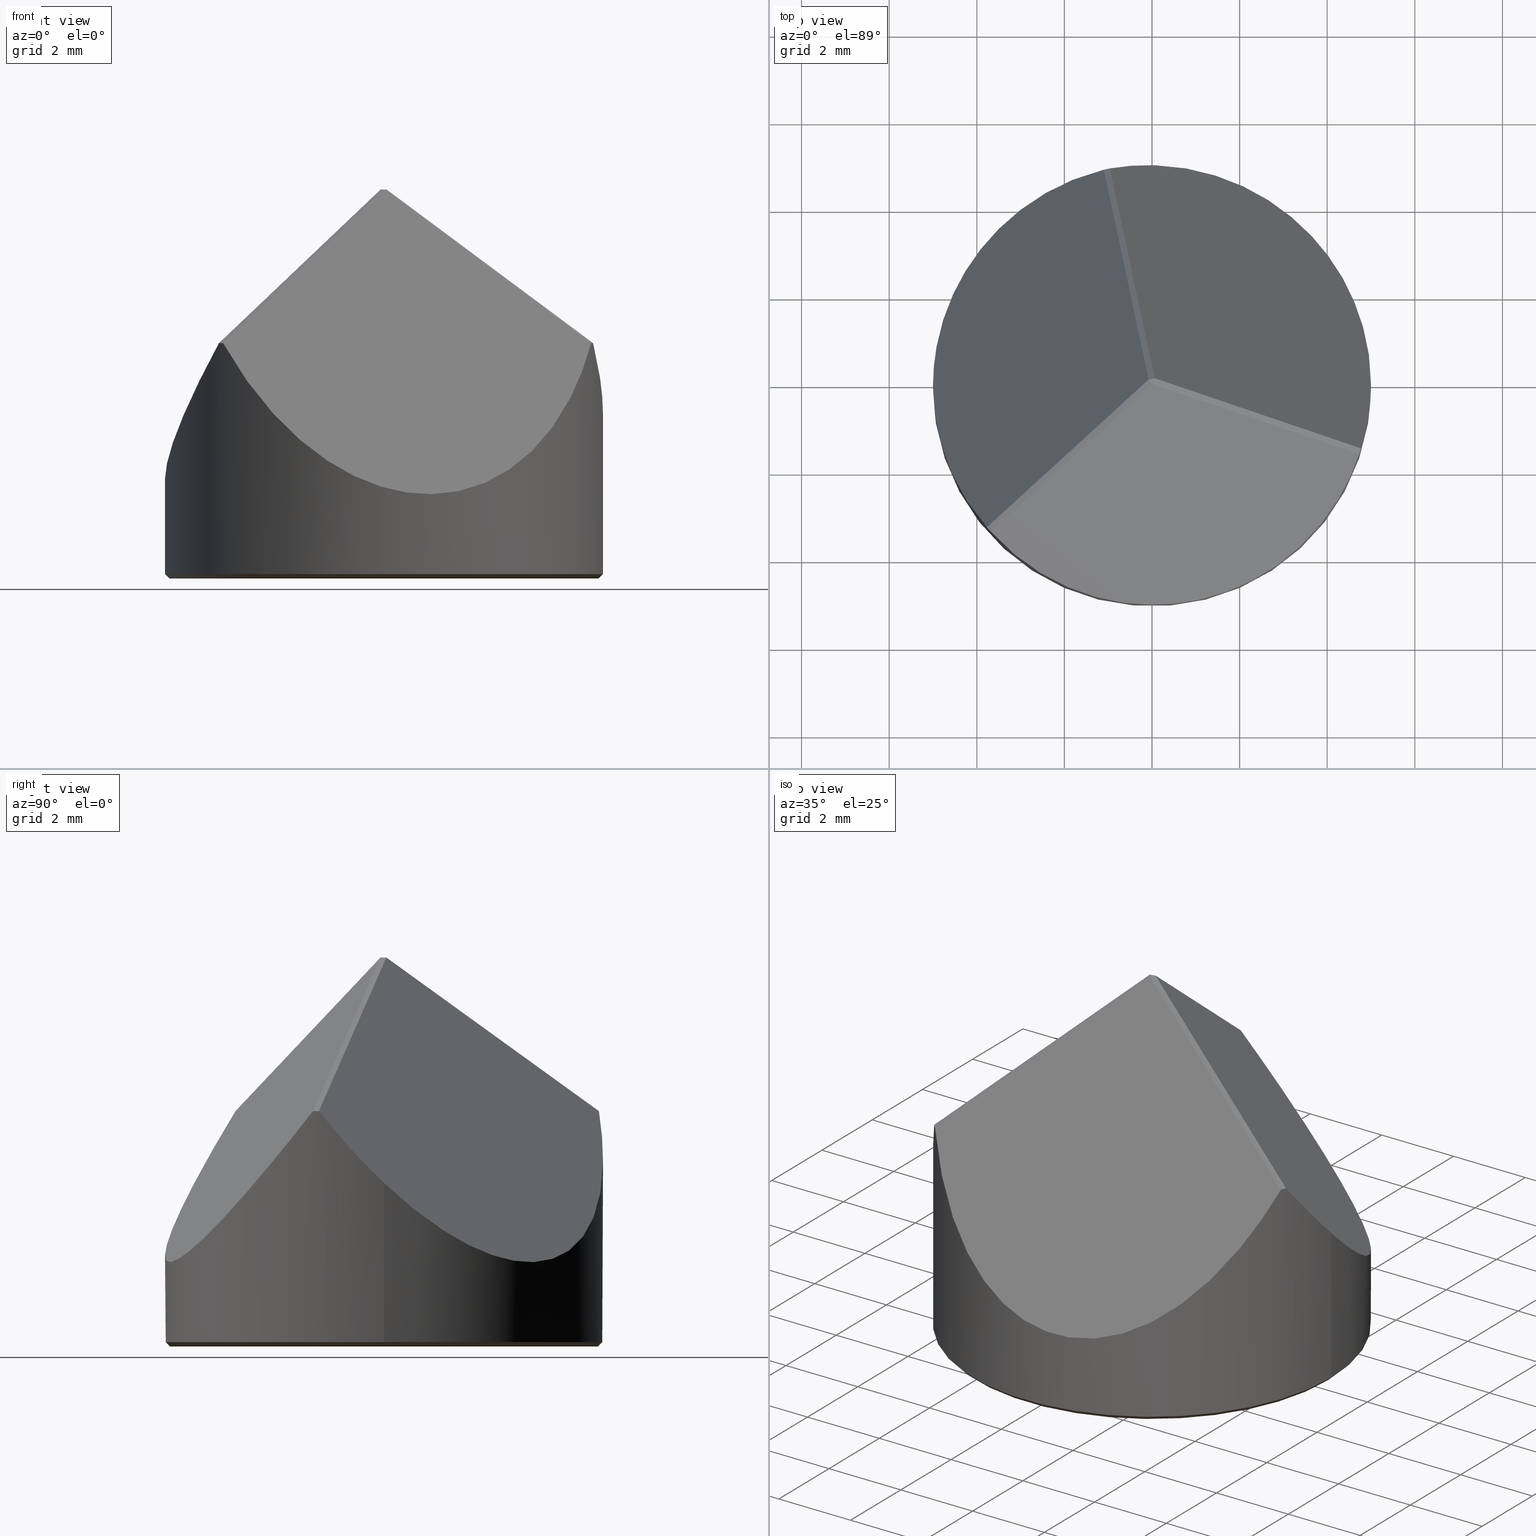
[diagram: canonical four-view strip — front | top / right | iso, engineering-drawing reading convention]
A machine part, canonical four-view strip (front | top / right | iso — engineering-drawing reading convention). The complete STEP part file that produces these views, byte-faithful:
ISO-10303-21;
HEADER;
FILE_DESCRIPTION (( 'STEP AP214' ),
    '1' );
FILE_NAME ('GP16-010-2.STEP',
    '2024-08-13T02:22:45',
    ( 'Windows User' ),
    ( 'P R C' ),
    'SwSTEP 2.0',
    'SolidWorks 2022',
    '' );
FILE_SCHEMA (( 'AUTOMOTIVE_DESIGN' ));
ENDSEC;

DATA;
#1 = DIRECTION ( 'NONE',  ( 0.1683570817218958959, -0.7989509119468811704, 0.5773502691896261751 ) ) ;
#2 = DIRECTION ( 'NONE',  ( 0.000000000000000000, 0.000000000000000000, -1.000000000000000000 ) ) ;
#3 = CARTESIAN_POINT ( 'NONE',  ( -5.000000000000000000, 0.000000000000000000, 1.814394517940242313 ) ) ;
#4 = ADVANCED_FACE ( 'NONE', ( #306 ), #161, .T. ) ;
#5 = DIRECTION ( 'NONE',  ( 0.000000000000000000, 0.000000000000000000, -1.000000000000000000 ) ) ;
#6 = CARTESIAN_POINT ( 'NONE',  ( -0.07760903269836616492, 0.02536739462952585650, 8.420063852094820334 ) ) ;
#7 = PLANE ( 'NONE',  #162 ) ;
#8 = DIRECTION ( 'NONE',  ( 0.3106858647308138321, 0.9505126477098904125, -1.227288938537843456E-14 ) ) ;
#9 = SURFACE_SIDE_STYLE ('',( #64 ) ) ;
#10 = DIRECTION ( 'NONE',  ( -0.9785110319005724255, -0.2061944724013640151, 1.227288938537842194E-14 ) ) ;
#11 = SHAPE_DEFINITION_REPRESENTATION ( #19, #221 ) ;
#12 = LINE ( 'NONE', #153, #134 ) ;
#13 = CARTESIAN_POINT ( 'NONE',  ( 2.994905055917830072, 2.687120959792284935, 2.845177968644243105 ) ) ;
#14 = ADVANCED_FACE ( 'NONE', ( #278 ), #67, .T. ) ;
#15 = DIRECTION ( 'NONE',  ( -1.000000000000000000, 0.000000000000000000, 0.000000000000000000 ) ) ;
#16 = CARTESIAN_POINT ( 'NONE',  ( -5.000000000000000000, -1.221581211786098908, 2.351128184227231799 ) ) ;
#17 = VERTEX_POINT ( 'NONE', #189 ) ;
#18 = EDGE_CURVE ( 'NONE', #225, #44, #185, .T. ) ;
#19 = PRODUCT_DEFINITION_SHAPE ( 'NONE', 'NONE',  #216 ) ;
#20 = ORIENTED_EDGE ( 'NONE', *, *, #18, .F. ) ;
#21 = VECTOR ( 'NONE', #328, 1000.000000000000114 ) ;
#22 =( GEOMETRIC_REPRESENTATION_CONTEXT ( 3 ) GLOBAL_UNCERTAINTY_ASSIGNED_CONTEXT ( ( #51 ) ) GLOBAL_UNIT_ASSIGNED_CONTEXT ( ( #154, #271, #251 ) ) REPRESENTATION_CONTEXT ( 'NONE', 'WORKASPACE' ) );
#23 = UNCERTAINTY_MEASURE_WITH_UNIT (LENGTH_MEASURE( 1.000000000000000082E-05 ), #112, 'distance_accuracy_value', 'NONE');
#24 = LINE ( 'NONE', #364, #157 ) ;
#25 = EDGE_CURVE ( 'NONE', #79, #358, #42, .T. ) ;
#26 = CARTESIAN_POINT ( 'NONE',  ( -2.917296023219464463, -2.712488354421814574, 5.632620910369529277 ) ) ;
#27 = ADVANCED_FACE ( 'NONE', ( #30 ), #91, .T. ) ;
#28 = VERTEX_POINT ( 'NONE', #86 ) ;
#29 = AXIS2_PLACEMENT_3D ( 'NONE', #182, #59, #319 ) ;
#30 = FACE_OUTER_BOUND ( 'NONE', #110, .T. ) ;
#31 = ORIENTED_EDGE ( 'NONE', *, *, #245, .T. ) ;
#32 = CARTESIAN_POINT ( 'NONE',  ( 4.999999999999998224, 3.399973796034752027, 0.06131317339008388045 ) ) ;
#33 = AXIS2_PLACEMENT_3D ( 'NONE', #13, #45, #330 ) ;
#34 = LINE ( 'NONE', #117, #122 ) ;
#35 = DIRECTION ( 'NONE',  ( 0.000000000000000000, 0.000000000000000000, 1.000000000000000000 ) ) ;
#36 =( NAMED_UNIT ( * ) PLANE_ANGLE_UNIT ( ) SI_UNIT ( $, .RADIAN. ) );
#37 = CARTESIAN_POINT ( 'NONE',  ( 5.000000000000000000, 6.123233995736766282E-16, 3.272409614722002758 ) ) ;
#38 = FILL_AREA_STYLE_COLOUR ( '', #100 ) ;
#39 = CIRCLE ( 'NONE', #272, 4.899999999999999467 ) ;
#40 = DIRECTION ( 'NONE',  ( -0.7760903269836912921, 0.2536739462952661839, 0.5773502691896258421 ) ) ;
#41 = CARTESIAN_POINT ( 'NONE',  ( -4.899999999999999467, 6.062001655779397525E-16, -0.4600000000000000755 ) ) ;
#42 = LINE ( 'NONE', #46, #224 ) ;
#43 = FILL_AREA_STYLE_COLOUR ( '', #128 ) ;
#44 = VERTEX_POINT ( 'NONE', #343 ) ;
#45 = DIRECTION ( 'NONE',  ( 0.6077332452617957292, 0.5452769656516156527, 0.5773502691896253980 ) ) ;
#46 = CARTESIAN_POINT ( 'NONE',  ( -0.8904358107890046892, 3.882696643678281490, 5.632620910369530165 ) ) ;
#47 = ORIENTED_EDGE ( 'NONE', *, *, #179, .T. ) ;
#48 = VECTOR ( 'NONE', #145, 1000.000000000000000 ) ;
#49 = LINE ( 'NONE', #52, #183 ) ;
#50 = VERTEX_POINT ( 'NONE', #152 ) ;
#51 = UNCERTAINTY_MEASURE_WITH_UNIT (LENGTH_MEASURE( 1.000000000000000082E-05 ), #154, 'distance_accuracy_value', 'NONE');
#52 = CARTESIAN_POINT ( 'NONE',  ( -0.7520534535644601837, 3.911856945613915393, 5.632620910369528389 ) ) ;
#53 = EDGE_CURVE ( 'NONE', #50, #220, #348, .T. ) ;
#54 = EDGE_LOOP ( 'NONE', ( #133, #252 ) ) ;
#55 = CARTESIAN_POINT ( 'NONE',  ( 4.745398251497156217, -1.575886402394129249, 4.913279594740165734 ) ) ;
#56 = ORIENTED_EDGE ( 'NONE', *, *, #68, .T. ) ;
#57 = CARTESIAN_POINT ( 'NONE',  ( 4.730119150283454310, -1.620485366833570140, 4.913751030691558164 ) ) ;
#58 = ADVANCED_FACE ( 'NONE', ( #206 ), #155, .T. ) ;
#59 = DIRECTION ( 'NONE',  ( 0.000000000000000000, 0.000000000000000000, 1.000000000000000000 ) ) ;
#60 = FACE_OUTER_BOUND ( 'NONE', #101, .T. ) ;
#61 = CARTESIAN_POINT ( 'NONE',  ( -0.7963128194141823046, -6.508875080536639324, -0.2393936368217334520 ) ) ;
#62 = EDGE_CURVE ( 'NONE', #358, #225, #197, .T. ) ;
#63 = SURFACE_STYLE_FILL_AREA ( #160 ) ;
#64 = SURFACE_STYLE_FILL_AREA ( #96 ) ;
#65 = CARTESIAN_POINT ( 'NONE',  ( -3.768441069280552558, -3.286160663655941061, 4.913751030691575039 ) ) ;
#66 = CARTESIAN_POINT ( 'NONE',  ( 0.000000000000000000, 0.000000000000000000, 0.000000000000000000 ) ) ;
#67 = CYLINDRICAL_SURFACE ( 'NONE', #329, 5.000000000000000000 ) ;
#68 = EDGE_CURVE ( 'NONE', #335, #204, #345, .T. ) ;
#69 = AXIS2_PLACEMENT_3D ( 'NONE', #342, #81, #205 ) ;
#70 = CARTESIAN_POINT ( 'NONE',  ( -3.011740764090020228, -2.607225868597601526, 5.632620910369531053 ) ) ;
#71 = ORIENTED_EDGE ( 'NONE', *, *, #301, .F. ) ;
#72 = EDGE_LOOP ( 'NONE', ( #71, #333, #307, #259 ) ) ;
#73 = ORIENTED_EDGE ( 'NONE', *, *, #149, .F. ) ;
#74 = ADVANCED_FACE ( 'NONE', ( #60 ), #180, .T. ) ;
#75 = VERTEX_POINT ( 'NONE', #298 ) ;
#76 = ORIENTED_EDGE ( 'NONE', *, *, #327, .F. ) ;
#77 = CARTESIAN_POINT ( 'NONE',  ( 3.807731834008469818, -1.170208289256470247, 5.632620910369531053 ) ) ;
#78 =( NAMED_UNIT ( * ) PLANE_ANGLE_UNIT ( ) SI_UNIT ( $, .RADIAN. ) );
#79 = VERTEX_POINT ( 'NONE', #82 ) ;
#80 = AXIS2_PLACEMENT_3D ( 'NONE', #77, #262, #287 ) ;
#81 = DIRECTION ( 'NONE',  ( -0.000000000000000000, -0.000000000000000000, -1.000000000000000000 ) ) ;
#82 = CARTESIAN_POINT ( 'NONE',  ( -0.07760903269836634533, 0.02536739462952527363, 8.420063852094820334 ) ) ;
#83 = EDGE_CURVE ( 'NONE', #335, #315, #146, .T. ) ;
#84 = CARTESIAN_POINT ( 'NONE',  ( -0.9616780810028860982, 4.906646030489524968, 4.913751030691584809 ) ) ;
#85 = CLOSED_SHELL ( 'NONE', ( #27, #14, #360, #236, #147, #4, #144, #58, #250, #264, #74, #297 ) ) ;
#86 = CARTESIAN_POINT ( 'NONE',  ( 0.01683570817218937171, -0.07989509119468515830, 8.420063852094820334 ) ) ;
#87 = MECHANICAL_DESIGN_GEOMETRIC_PRESENTATION_REPRESENTATION (  '', ( #203 ), #22 ) ;
#88 = DIRECTION ( 'NONE',  ( 0.000000000000000000, -0.5857106597838060980, -0.8105202175242876006 ) ) ;
#89 = APPLICATION_CONTEXT ( 'automotive_design' ) ;
#90 = DIRECTION ( 'NONE',  ( 0.000000000000000000, 0.000000000000000000, 1.000000000000000000 ) ) ;
#91 = CONICAL_SURFACE ( 'NONE', #353, 4.899999999999999467, 0.7853981633974482790 ) ;
#92 = DIRECTION ( 'NONE',  ( 0.000000000000000000, 0.000000000000000000, -1.000000000000000000 ) ) ;
#93 = SURFACE_STYLE_USAGE ( .BOTH. , #9 ) ;
#94 = DIRECTION ( 'NONE',  ( 0.5968741507396998491, 0.000000000000000000, 0.8023348728422329268 ) ) ;
#95 = EDGE_CURVE ( 'NONE', #50, #204, #34, .T. ) ;
#96 = FILL_AREA_STYLE ('',( #38 ) ) ;
#97 = AXIS2_PLACEMENT_3D ( 'NONE', #282, #173, #309 ) ;
#98 = CARTESIAN_POINT ( 'NONE',  ( 0.000000000000000000, 0.000000000000000000, -0.4600000000000000755 ) ) ;
#99 = EDGE_LOOP ( 'NONE', ( #135, #229, #140, #361, #193, #20, #277, #286 ) ) ;
#100 = COLOUR_RGB ( '',1.000000000000000000, 1.000000000000000000, 1.000000000000000000 ) ;
#101 = EDGE_LOOP ( 'NONE', ( #190, #165, #76 ) ) ;
#102 = ORIENTED_EDGE ( 'NONE', *, *, #291, .T. ) ;
#103 = PRODUCT ( 'GP16-010-2', 'GP16-010-2', '', ( #126 ) ) ;
#104 = ORIENTED_EDGE ( 'NONE', *, *, #25, .F. ) ;
#105 = ORIENTED_EDGE ( 'NONE', *, *, #166, .T. ) ;
#106 = PLANE ( 'NONE',  #97 ) ;
#107 = EDGE_CURVE ( 'NONE', #75, #204, #167, .T. ) ;
#108 = ORIENTED_EDGE ( 'NONE', *, *, #275, .T. ) ;
#109 = DIRECTION ( 'NONE',  ( -0.7071067811865474617, 8.659560562354932858E-17, 0.7071067811865474617 ) ) ;
#110 = EDGE_LOOP ( 'NONE', ( #192, #308, #73, #164 ) ) ;
#111 = CARTESIAN_POINT ( 'NONE',  ( -1.100060438227439485, 4.877485728553889288, 4.913751030691609678 ) ) ;
#112 =( LENGTH_UNIT ( ) NAMED_UNIT ( * ) SI_UNIT ( .MILLI., .METRE. ) );
#113 = PRODUCT_RELATED_PRODUCT_CATEGORY ( 'part', '', ( #103 ) ) ;
#114 = CARTESIAN_POINT ( 'NONE',  ( 5.000000000000000000, 6.123233995736766282E-16, 3.272409614722002758 ) ) ;
#115 = CARTESIAN_POINT ( 'NONE',  ( -3.673996328409991463, -3.391423149480156773, 4.913751030691622113 ) ) ;
#116 = MECHANICAL_DESIGN_GEOMETRIC_PRESENTATION_REPRESENTATION (  '', ( #341 ), #267 ) ;
#117 = CARTESIAN_POINT ( 'NONE',  ( 4.899999999999999467, 0.000000000000000000, -0.4600000000000003531 ) ) ;
#118 =( BOUNDED_CURVE ( )  B_SPLINE_CURVE ( 3, ( #276, #243, #125, #325 ),
 .UNSPECIFIED., .F., .T. ) 
 B_SPLINE_CURVE_WITH_KNOTS ( ( 4, 4 ),
 ( 6.269042700108901300, 6.297327914250268499 ),
 .UNSPECIFIED. ) 
 CURVE ( )  GEOMETRIC_REPRESENTATION_ITEM ( )  RATIONAL_B_SPLINE_CURVE ( ( 1.000000000000000000, 0.9999333299996664426, 0.9999333299996664426, 1.000000000000000000 ) ) 
 REPRESENTATION_ITEM ( '' )  );
#119 = DIRECTION ( 'NONE',  ( 1.000000000000000000, 0.000000000000000000, -1.054249127687239175E-14 ) ) ;
#120 = DIRECTION ( 'NONE',  ( -1.000000000000000000, 0.000000000000000000, 0.000000000000000000 ) ) ;
#121 = APPLICATION_PROTOCOL_DEFINITION ( 'draft international standard', 'automotive_design', 1998, #151 ) ;
#122 = VECTOR ( 'NONE', #269, 1000.000000000000114 ) ;
#123 = SURFACE_STYLE_USAGE ( .BOTH. , #184 ) ;
#124 = CARTESIAN_POINT ( 'NONE',  ( -3.824567542180657309, 1.250103380451152990, 2.845177968644243105 ) ) ;
#125 = CARTESIAN_POINT ( 'NONE',  ( -1.007941467796784396, 4.897578638067860091, 4.913279594740163070 ) ) ;
#126 = PRODUCT_CONTEXT ( 'NONE', #89, 'mechanical' ) ;
#127 = DIRECTION ( 'NONE',  ( -0.000000000000000000, -0.000000000000000000, -1.000000000000000000 ) ) ;
#128 = COLOUR_RGB ( '',1.000000000000000000, 1.000000000000000000, 1.000000000000000000 ) ;
#129 = CARTESIAN_POINT ( 'NONE',  ( -5.000000000000000000, 0.000000000000000000, 1.814394517940242313 ) ) ;
#130 = VECTOR ( 'NONE', #202, 1000.000000000000114 ) ;
#131 = ORIENTED_EDGE ( 'NONE', *, *, #191, .F. ) ;
#132 = EDGE_CURVE ( 'NONE', #196, #305, #226, .T. ) ;
#133 = ORIENTED_EDGE ( 'NONE', *, *, #53, .T. ) ;
#134 = VECTOR ( 'NONE', #40, 1000.000000000000114 ) ;
#135 = ORIENTED_EDGE ( 'NONE', *, *, #68, .F. ) ;
#136 = FACE_OUTER_BOUND ( 'NONE', #231, .T. ) ;
#137 = EDGE_CURVE ( 'NONE', #17, #305, #324, .T. ) ;
#138 = ORIENTED_EDGE ( 'NONE', *, *, #137, .F. ) ;
#139 = LINE ( 'NONE', #260, #194 ) ;
#140 = ORIENTED_EDGE ( 'NONE', *, *, #137, .T. ) ;
#141 = DIRECTION ( 'NONE',  ( 0.4297322988771148378, 0.3855690400370905269, -0.8164965809277260345 ) ) ;
#142 = ORIENTED_EDGE ( 'NONE', *, *, #212, .F. ) ;
#143 = DIRECTION ( 'NONE',  ( 1.000000000000000000, 0.000000000000000000, 0.000000000000000000 ) ) ;
#144 = ADVANCED_FACE ( 'NONE', ( #265 ), #266, .T. ) ;
#145 = DIRECTION ( 'NONE',  ( -0.000000000000000000, -0.000000000000000000, -1.000000000000000000 ) ) ;
#146 =( BOUNDED_CURVE ( )  B_SPLINE_CURVE ( 3, ( #114, #32, #235, #84 ),
 .UNSPECIFIED., .F., .T. ) 
 B_SPLINE_CURVE_WITH_KNOTS ( ( 4, 4 ),
 ( 5.551902276905597233, 7.316240251305500486 ),
 .UNSPECIFIED. ) 
 CURVE ( )  GEOMETRIC_REPRESENTATION_ITEM ( )  RATIONAL_B_SPLINE_CURVE ( ( 1.000000000000000000, 0.7569852826710528060, 0.7569852826710528060, 1.000000000000000000 ) ) 
 REPRESENTATION_ITEM ( '' )  );
#147 = ADVANCED_FACE ( 'NONE', ( #213 ), #7, .T. ) ;
#148 = CARTESIAN_POINT ( 'NONE',  ( 4.760045100120551709, -1.531075818952573719, 4.913279594740166623 ) ) ;
#149 = EDGE_CURVE ( 'NONE', #204, #75, #366, .T. ) ;
#150 = CARTESIAN_POINT ( 'NONE',  ( 0.000000000000000000, 0.000000000000000000, -0.3600000000000000977 ) ) ;
#151 = APPLICATION_CONTEXT ( 'automotive_design' ) ;
#152 = CARTESIAN_POINT ( 'NONE',  ( 4.899999999999999467, 0.000000000000000000, -0.4600000000000000755 ) ) ;
#153 = CARTESIAN_POINT ( 'NONE',  ( 3.763794217654481855, -1.304631077016314089, 5.632620910369531941 ) ) ;
#154 =( LENGTH_UNIT ( ) NAMED_UNIT ( * ) SI_UNIT ( .MILLI., .METRE. ) );
#155 = CONICAL_SURFACE ( 'NONE', #29, 4.899999999999999467, 0.7853981633974482790 ) ;
#156 = CARTESIAN_POINT ( 'NONE',  ( -5.000000000000000000, 0.000000000000000000, 1.814394517940242313 ) ) ;
#157 = VECTOR ( 'NONE', #230, 1000.000000000000114 ) ;
#158 = CARTESIAN_POINT ( 'NONE',  ( 5.000000000000000000, 6.123233995736766282E-16, -0.3600000000000000977 ) ) ;
#159 = ORIENTED_EDGE ( 'NONE', *, *, #25, .T. ) ;
#160 = FILL_AREA_STYLE ('',( #43 ) ) ;
#161 = PLANE ( 'NONE',  #33 ) ;
#162 = AXIS2_PLACEMENT_3D ( 'NONE', #347, #323, #88 ) ;
#163 = CARTESIAN_POINT ( 'NONE',  ( 0.000000000000000000, 0.000000000000000000, 5.000000000000000000 ) ) ;
#164 = ORIENTED_EDGE ( 'NONE', *, *, #95, .F. ) ;
#165 = ORIENTED_EDGE ( 'NONE', *, *, #233, .T. ) ;
#166 = EDGE_CURVE ( 'NONE', #17, #335, #357, .T. ) ;
#167 = CIRCLE ( 'NONE', #209, 5.000000000000000000 ) ;
#168 = FACE_OUTER_BOUND ( 'NONE', #365, .T. ) ;
#169 = PRODUCT_DEFINITION_FORMATION_WITH_SPECIFIED_SOURCE ( '�κ�', '', #103, .NOT_KNOWN. ) ;
#170 = ORIENTED_EDGE ( 'NONE', *, *, #179, .F. ) ;
#171 = FACE_OUTER_BOUND ( 'NONE', #218, .T. ) ;
#172 = ORIENTED_EDGE ( 'NONE', *, *, #322, .F. ) ;
#173 = DIRECTION ( 'NONE',  ( 0.1190464341463306347, -0.5649436076728163725, -0.8164965809277258124 ) ) ;
#174 = CARTESIAN_POINT ( 'NONE',  ( 0.000000000000000000, 0.000000000000000000, -0.3600000000000000977 ) ) ;
#175 = VECTOR ( 'NONE', #10, 1000.000000000000114 ) ;
#176 = FACE_OUTER_BOUND ( 'NONE', #99, .T. ) ;
#177 = CARTESIAN_POINT ( 'NONE',  ( 3.355108185514644070, -5.634076497873176770, -0.2393936368217663979 ) ) ;
#178 = AXIS2_PLACEMENT_3D ( 'NONE', #344, #141, #228 ) ;
#179 = EDGE_CURVE ( 'NONE', #305, #28, #12, .T. ) ;
#180 = PLANE ( 'NONE',  #244 ) ;
#181 = EDGE_CURVE ( 'NONE', #220, #50, #39, .T. ) ;
#182 = CARTESIAN_POINT ( 'NONE',  ( 0.000000000000000000, 0.000000000000000000, -0.4600000000000003531 ) ) ;
#183 = VECTOR ( 'NONE', #1, 1000.000000000000000 ) ;
#184 = SURFACE_SIDE_STYLE ('',( #63 ) ) ;
#185 =( BOUNDED_CURVE ( )  B_SPLINE_CURVE ( 3, ( #129, #16, #255, #223 ),
 .UNSPECIFIED., .F., .T. ) 
 B_SPLINE_CURVE_WITH_KNOTS ( ( 4, 4 ),
 ( 0.3159145209226034701, 1.033054944125912478 ),
 .UNSPECIFIED. ) 
 CURVE ( )  GEOMETRIC_REPRESENTATION_ITEM ( )  RATIONAL_B_SPLINE_CURVE ( ( 1.000000000000000000, 0.9575996963291497632, 0.9575996963291497632, 1.000000000000000000 ) ) 
 REPRESENTATION_ITEM ( '' )  );
#186 = CARTESIAN_POINT ( 'NONE',  ( -3.705973104393262663, -3.356782070387760442, 4.913279594740163958 ) ) ;
#187 = VECTOR ( 'NONE', #8, 1000.000000000000114 ) ;
#188 = CARTESIAN_POINT ( 'NONE',  ( -3.673996328409991463, -3.391423149480156773, 4.913751030691622113 ) ) ;
#189 = CARTESIAN_POINT ( 'NONE',  ( 4.774056766637435167, -1.486062579073748280, 4.913751030691591026 ) ) ;
#190 = ORIENTED_EDGE ( 'NONE', *, *, #195, .T. ) ;
#191 = EDGE_CURVE ( 'NONE', #196, #44, #239, .T. ) ;
#192 = ORIENTED_EDGE ( 'NONE', *, *, #181, .F. ) ;
#193 = ORIENTED_EDGE ( 'NONE', *, *, #191, .T. ) ;
#194 = VECTOR ( 'NONE', #109, 1000.000000000000114 ) ;
#195 = EDGE_CURVE ( 'NONE', #28, #355, #302, .T. ) ;
#196 = VERTEX_POINT ( 'NONE', #351 ) ;
#197 =( BOUNDED_CURVE ( )  B_SPLINE_CURVE ( 3, ( #321, #237, #346, #3 ),
 .UNSPECIFIED., .F., .F. ) 
 B_SPLINE_CURVE_WITH_KNOTS ( ( 4, 4 ),
 ( 5.250130363053667537, 6.599099828102189313 ),
 .UNSPECIFIED. ) 
 CURVE ( )  GEOMETRIC_REPRESENTATION_ITEM ( )  RATIONAL_B_SPLINE_CURVE ( ( 1.000000000000000000, 0.8540192244947443223, 0.8540192244947443223, 1.000000000000000000 ) ) 
 REPRESENTATION_ITEM ( '' )  );
#198 = ORIENTED_EDGE ( 'NONE', *, *, #311, .F. ) ;
#199 = DIRECTION ( 'NONE',  ( -0.000000000000000000, -0.000000000000000000, -1.000000000000000000 ) ) ;
#200 = ORIENTED_EDGE ( 'NONE', *, *, #132, .T. ) ;
#201 = UNCERTAINTY_MEASURE_WITH_UNIT (LENGTH_MEASURE( 1.000000000000000082E-05 ), #217, 'distance_accuracy_value', 'NONE');
#202 = DIRECTION ( 'NONE',  ( -0.6077332452617950631, -0.5452769656516156527, -0.5773502691896260641 ) ) ;
#203 = STYLED_ITEM ( 'NONE', ( #215 ), #221 ) ;
#204 = VERTEX_POINT ( 'NONE', #158 ) ;
#205 = DIRECTION ( 'NONE',  ( -1.000000000000000000, 0.000000000000000000, 0.000000000000000000 ) ) ;
#206 = FACE_OUTER_BOUND ( 'NONE', #72, .T. ) ;
#207 = CARTESIAN_POINT ( 'NONE',  ( -0.9616780810028860982, 4.906646030489524968, 4.913751030691584809 ) ) ;
#208 = DIRECTION ( 'NONE',  ( -1.000000000000000000, 0.000000000000000000, 0.000000000000000000 ) ) ;
#209 = AXIS2_PLACEMENT_3D ( 'NONE', #150, #90, #208 ) ;
#210 = DIRECTION ( 'NONE',  ( 1.054249127687239175E-14, 9.459047532252863086E-15, 1.000000000000000000 ) ) ;
#211 =( GEOMETRIC_REPRESENTATION_CONTEXT ( 3 ) GLOBAL_UNCERTAINTY_ASSIGNED_CONTEXT ( ( #23 ) ) GLOBAL_UNIT_ASSIGNED_CONTEXT ( ( #112, #36, #350 ) ) REPRESENTATION_CONTEXT ( 'NONE', 'WORKASPACE' ) );
#212 = EDGE_CURVE ( 'NONE', #358, #315, #118, .T. ) ;
#213 = FACE_OUTER_BOUND ( 'NONE', #363, .T. ) ;
#214 = CARTESIAN_POINT ( 'NONE',  ( 0.03880451634918225673, -0.01268369731476521635, 8.420063852094820334 ) ) ;
#215 = PRESENTATION_STYLE_ASSIGNMENT (( #93 ) ) ;
#216 = PRODUCT_DEFINITION ( 'δ֪', '', #169, #285 ) ;
#217 =( LENGTH_UNIT ( ) NAMED_UNIT ( * ) SI_UNIT ( .MILLI., .METRE. ) );
#218 = EDGE_LOOP ( 'NONE', ( #142, #104, #290, #257 ) ) ;
#219 = PLANE ( 'NONE',  #253 ) ;
#220 = VERTEX_POINT ( 'NONE', #41 ) ;
#221 = ADVANCED_BREP_SHAPE_REPRESENTATION ( 'GP16-010-2', ( #248, #314 ), #211 ) ;
#222 = ORIENTED_EDGE ( 'NONE', *, *, #275, .F. ) ;
#223 = CARTESIAN_POINT ( 'NONE',  ( -3.768441069280552558, -3.286160663655941061, 4.913751030691575039 ) ) ;
#224 = VECTOR ( 'NONE', #289, 999.9999999999998863 ) ;
#225 = VERTEX_POINT ( 'NONE', #156 ) ;
#226 =( BOUNDED_CURVE ( )  B_SPLINE_CURVE ( 3, ( #115, #61, #177, #294 ),
 .UNSPECIFIED., .F., .T. ) 
 B_SPLINE_CURVE_WITH_KNOTS ( ( 4, 4 ),
 ( 5.250130363053665761, 7.316240251305496045 ),
 .UNSPECIFIED. ) 
 CURVE ( )  GEOMETRIC_REPRESENTATION_ITEM ( )  RATIONAL_B_SPLINE_CURVE ( ( 1.000000000000000000, 0.6747982974757769092, 0.6747982974757769092, 1.000000000000000000 ) ) 
 REPRESENTATION_ITEM ( '' )  );
#227 = ORIENTED_EDGE ( 'NONE', *, *, #149, .T. ) ;
#228 = DIRECTION ( 'NONE',  ( -0.6077332452617952852, -0.5452769656516155417, -0.5773502691896258421 ) ) ;
#229 = ORIENTED_EDGE ( 'NONE', *, *, #166, .F. ) ;
#230 = DIRECTION ( 'NONE',  ( -0.6678251671697992276, 0.7443181753085367225, 9.609975081231045588E-29 ) ) ;
#231 = EDGE_LOOP ( 'NONE', ( #138, #172, #332, #170 ) ) ;
#232 = CYLINDRICAL_SURFACE ( 'NONE', #69, 5.000000000000000000 ) ;
#233 = EDGE_CURVE ( 'NONE', #355, #79, #273, .T. ) ;
#234 = PRESENTATION_LAYER_ASSIGNMENT (  '', '', ( #203 ) ) ;
#235 = CARTESIAN_POINT ( 'NONE',  ( 2.374815505013576189, 5.560582085615683567, 0.7840667299621245645 ) ) ;
#236 = ADVANCED_FACE ( 'NONE', ( #349 ), #219, .T. ) ;
#237 = CARTESIAN_POINT ( 'NONE',  ( -3.477809612900359504, 4.341211929991462881, 1.953140228378772880 ) ) ;
#238 = PRESENTATION_LAYER_ASSIGNMENT (  '', '', ( #341 ) ) ;
#239 =( BOUNDED_CURVE ( )  B_SPLINE_CURVE ( 3, ( #188, #186, #299, #65 ),
 .UNSPECIFIED., .F., .F. ) 
 B_SPLINE_CURVE_WITH_KNOTS ( ( 4, 4 ),
 ( 6.269042700108919952, 6.297327914250287151 ),
 .UNSPECIFIED. ) 
 CURVE ( )  GEOMETRIC_REPRESENTATION_ITEM ( )  RATIONAL_B_SPLINE_CURVE ( ( 1.000000000000000000, 0.9999333299996664426, 0.9999333299996664426, 1.000000000000000000 ) ) 
 REPRESENTATION_ITEM ( '' )  );
#240 = DIRECTION ( 'NONE',  ( -1.000000000000000000, 0.000000000000000000, -0.000000000000000000 ) ) ;
#241 = CARTESIAN_POINT ( 'NONE',  ( 0.000000000000000000, 0.000000000000000000, -0.4600000000000003531 ) ) ;
#242 = DIRECTION ( 'NONE',  ( 1.000000000000000000, 0.000000000000000000, 0.000000000000000000 ) ) ;
#243 = CARTESIAN_POINT ( 'NONE',  ( -1.054071995727281941, 4.887857889340327944, 4.913279594740163070 ) ) ;
#244 = AXIS2_PLACEMENT_3D ( 'NONE', #6, #210, #119 ) ;
#245 = EDGE_CURVE ( 'NONE', #44, #79, #249, .T. ) ;
#246 = PRESENTATION_STYLE_ASSIGNMENT (( #123 ) ) ;
#247 = CARTESIAN_POINT ( 'NONE',  ( 4.924110768126089610, -1.004005947505485885, 4.300523322111938107 ) ) ;
#248 = MANIFOLD_SOLID_BREP ( '����2', #85 ) ;
#249 = LINE ( 'NONE', #70, #21 ) ;
#250 = ADVANCED_FACE ( 'NONE', ( #171 ), #106, .F. ) ;
#251 =( NAMED_UNIT ( * ) SI_UNIT ( $, .STERADIAN. ) SOLID_ANGLE_UNIT ( ) );
#252 = ORIENTED_EDGE ( 'NONE', *, *, #181, .T. ) ;
#253 = AXIS2_PLACEMENT_3D ( 'NONE', #124, #331, #94 ) ;
#254 = ORIENTED_EDGE ( 'NONE', *, *, #245, .F. ) ;
#255 = CARTESIAN_POINT ( 'NONE',  ( -4.571303494407077395, -2.365469302064693746, 3.429991138699881148 ) ) ;
#256 = EDGE_LOOP ( 'NONE', ( #102, #339, #105, #284 ) ) ;
#257 = ORIENTED_EDGE ( 'NONE', *, *, #291, .F. ) ;
#258 = PLANE ( 'NONE',  #80 ) ;
#259 = ORIENTED_EDGE ( 'NONE', *, *, #107, .F. ) ;
#260 = CARTESIAN_POINT ( 'NONE',  ( -4.899999999999999467, 6.000769315822030740E-16, -0.4600000000000003531 ) ) ;
#261 = CARTESIAN_POINT ( 'NONE',  ( 5.000000000000000000, 6.123233995736766282E-16, 3.272409614722002758 ) ) ;
#262 = DIRECTION ( 'NONE',  ( -0.5487787330234525918, 0.1793745676357375862, -0.8164965809277259234 ) ) ;
#263 = DIRECTION ( 'NONE',  ( -1.000000000000000000, 0.000000000000000000, 0.000000000000000000 ) ) ;
#264 = ADVANCED_FACE ( 'NONE', ( #136 ), #258, .F. ) ;
#265 = FACE_OUTER_BOUND ( 'NONE', #54, .T. ) ;
#266 = PLANE ( 'NONE',  #288 ) ;
#267 =( GEOMETRIC_REPRESENTATION_CONTEXT ( 3 ) GLOBAL_UNCERTAINTY_ASSIGNED_CONTEXT ( ( #201 ) ) GLOBAL_UNIT_ASSIGNED_CONTEXT ( ( #217, #78, #313 ) ) REPRESENTATION_CONTEXT ( 'NONE', 'WORKASPACE' ) );
#268 = CARTESIAN_POINT ( 'NONE',  ( 0.000000000000000000, 0.000000000000000000, -0.4600000000000000755 ) ) ;
#269 = DIRECTION ( 'NONE',  ( 0.7071067811865474617, 0.000000000000000000, 0.7071067811865474617 ) ) ;
#270 = CARTESIAN_POINT ( 'NONE',  ( 4.774056766637435167, -1.486062579073748280, 4.913751030691591026 ) ) ;
#271 =( NAMED_UNIT ( * ) PLANE_ANGLE_UNIT ( ) SI_UNIT ( $, .RADIAN. ) );
#272 = AXIS2_PLACEMENT_3D ( 'NONE', #98, #92, #304 ) ;
#273 = LINE ( 'NONE', #352, #175 ) ;
#274 = VECTOR ( 'NONE', #283, 1000.000000000000114 ) ;
#275 = EDGE_CURVE ( 'NONE', #28, #196, #340, .T. ) ;
#276 = CARTESIAN_POINT ( 'NONE',  ( -1.100060438227439485, 4.877485728553889288, 4.913751030691609678 ) ) ;
#277 = ORIENTED_EDGE ( 'NONE', *, *, #311, .T. ) ;
#278 = FACE_OUTER_BOUND ( 'NONE', #354, .T. ) ;
#279 = EDGE_LOOP ( 'NONE', ( #281, #312, #31, #159 ) ) ;
#280 = ORIENTED_EDGE ( 'NONE', *, *, #62, .F. ) ;
#281 = ORIENTED_EDGE ( 'NONE', *, *, #62, .T. ) ;
#282 = CARTESIAN_POINT ( 'NONE',  ( -0.8904358107890046892, 3.882696643678281490, 5.632620910369529277 ) ) ;
#283 = DIRECTION ( 'NONE',  ( 0.7760903269836912921, -0.2536739462952662949, -0.5773502691896258421 ) ) ;
#284 = ORIENTED_EDGE ( 'NONE', *, *, #83, .T. ) ;
#285 = PRODUCT_DEFINITION_CONTEXT ( 'detailed design', #151, 'design' ) ;
#286 = ORIENTED_EDGE ( 'NONE', *, *, #107, .T. ) ;
#287 = DIRECTION ( 'NONE',  ( 0.7760903269836912921, -0.2536739462952661839, -0.5773502691896259531 ) ) ;
#288 = AXIS2_PLACEMENT_3D ( 'NONE', #268, #5, #240 ) ;
#289 = DIRECTION ( 'NONE',  ( -0.1683570817218959514, 0.7989509119468812814, -0.5773502691896260641 ) ) ;
#290 = ORIENTED_EDGE ( 'NONE', *, *, #233, .F. ) ;
#291 = EDGE_CURVE ( 'NONE', #315, #355, #49, .T. ) ;
#292 = LINE ( 'NONE', #338, #336 ) ;
#293 = CARTESIAN_POINT ( 'NONE',  ( 0.000000000000000000, 0.000000000000000000, -0.4600000000000000755 ) ) ;
#294 = CARTESIAN_POINT ( 'NONE',  ( 4.730119150283454310, -1.620485366833570140, 4.913751030691558164 ) ) ;
#295 = CARTESIAN_POINT ( 'NONE',  ( 5.000000000000000000, 6.123233995736766282E-16, 5.000000000000000000 ) ) ;
#296 = AXIS2_PLACEMENT_3D ( 'NONE', #174, #35, #120 ) ;
#297 = ADVANCED_FACE ( 'NONE', ( #168 ), #362, .F. ) ;
#298 = CARTESIAN_POINT ( 'NONE',  ( -5.000000000000000000, 0.000000000000000000, -0.3600000000000000977 ) ) ;
#299 = CARTESIAN_POINT ( 'NONE',  ( -3.737456783700360496, -3.321692235673728621, 4.913279594740163958 ) ) ;
#300 = DIRECTION ( 'NONE',  ( 0.000000000000000000, 0.000000000000000000, 1.000000000000000000 ) ) ;
#301 = EDGE_CURVE ( 'NONE', #220, #75, #139, .T. ) ;
#302 = LINE ( 'NONE', #214, #187 ) ;
#303 = APPLICATION_PROTOCOL_DEFINITION ( 'draft international standard', 'automotive_design', 1998, #89 ) ;
#304 = DIRECTION ( 'NONE',  ( -1.000000000000000000, 0.000000000000000000, 0.000000000000000000 ) ) ;
#305 = VERTEX_POINT ( 'NONE', #316 ) ;
#306 = FACE_OUTER_BOUND ( 'NONE', #256, .T. ) ;
#307 = ORIENTED_EDGE ( 'NONE', *, *, #95, .T. ) ;
#308 = ORIENTED_EDGE ( 'NONE', *, *, #301, .T. ) ;
#309 = DIRECTION ( 'NONE',  ( -0.1683570817218959237, 0.7989509119468812814, -0.5773502691896260641 ) ) ;
#310 = CARTESIAN_POINT ( 'NONE',  ( 3.807731834008468930, -1.170208289256470247, 5.632620910369531053 ) ) ;
#311 = EDGE_CURVE ( 'NONE', #225, #75, #292, .T. ) ;
#312 = ORIENTED_EDGE ( 'NONE', *, *, #18, .T. ) ;
#313 =( NAMED_UNIT ( * ) SI_UNIT ( $, .STERADIAN. ) SOLID_ANGLE_UNIT ( ) );
#314 = AXIS2_PLACEMENT_3D ( 'NONE', #66, #300, #242 ) ;
#315 = VERTEX_POINT ( 'NONE', #207 ) ;
#316 = CARTESIAN_POINT ( 'NONE',  ( 4.730119150283454310, -1.620485366833570140, 4.913751030691558164 ) ) ;
#317 = CARTESIAN_POINT ( 'NONE',  ( 4.774056766637435167, -1.486062579073748280, 4.913751030691591026 ) ) ;
#318 = LINE ( 'NONE', #310, #274 ) ;
#319 = DIRECTION ( 'NONE',  ( 1.000000000000000000, 0.000000000000000000, 0.000000000000000000 ) ) ;
#320 = DIRECTION ( 'NONE',  ( 0.000000000000000000, 0.000000000000000000, 1.000000000000000000 ) ) ;
#321 = CARTESIAN_POINT ( 'NONE',  ( -1.100060438227439485, 4.877485728553889288, 4.913751030691609678 ) ) ;
#322 = EDGE_CURVE ( 'NONE', #355, #17, #318, .T. ) ;
#323 = DIRECTION ( 'NONE',  ( 0.1683570817218959514, -0.7989509119468813925, 0.5773502691896258421 ) ) ;
#324 =( BOUNDED_CURVE ( )  B_SPLINE_CURVE ( 3, ( #317, #148, #55, #57 ),
 .UNSPECIFIED., .F., .F. ) 
 B_SPLINE_CURVE_WITH_KNOTS ( ( 4, 4 ),
 ( 6.269042700108897748, 6.297327914250258729 ),
 .UNSPECIFIED. ) 
 CURVE ( )  GEOMETRIC_REPRESENTATION_ITEM ( )  RATIONAL_B_SPLINE_CURVE ( ( 1.000000000000000000, 0.9999333299996666646, 0.9999333299996666646, 1.000000000000000000 ) ) 
 REPRESENTATION_ITEM ( '' )  );
#325 = CARTESIAN_POINT ( 'NONE',  ( -0.9616780810028860982, 4.906646030489524968, 4.913751030691584809 ) ) ;
#326 = CARTESIAN_POINT ( 'NONE',  ( 4.999999999999999112, -0.5048710720586937484, 3.749233790458249338 ) ) ;
#327 = EDGE_CURVE ( 'NONE', #28, #79, #24, .T. ) ;
#328 = DIRECTION ( 'NONE',  ( 0.6077332452617952852, 0.5452769656516155417, 0.5773502691896259531 ) ) ;
#329 = AXIS2_PLACEMENT_3D ( 'NONE', #163, #127, #15 ) ;
#330 = DIRECTION ( 'NONE',  ( 0.6887517733186862001, 0.000000000000000000, -0.7249972377536104684 ) ) ;
#331 = DIRECTION ( 'NONE',  ( -0.7760903269836918472, 0.2536739462952660729, 0.5773502691896253980 ) ) ;
#332 = ORIENTED_EDGE ( 'NONE', *, *, #195, .F. ) ;
#333 = ORIENTED_EDGE ( 'NONE', *, *, #53, .F. ) ;
#334 = ORIENTED_EDGE ( 'NONE', *, *, #327, .T. ) ;
#335 = VERTEX_POINT ( 'NONE', #261 ) ;
#336 = VECTOR ( 'NONE', #199, 1000.000000000000000 ) ;
#337 = ORIENTED_EDGE ( 'NONE', *, *, #83, .F. ) ;
#338 = CARTESIAN_POINT ( 'NONE',  ( -5.000000000000000000, 0.000000000000000000, 5.000000000000000000 ) ) ;
#339 = ORIENTED_EDGE ( 'NONE', *, *, #322, .T. ) ;
#340 = LINE ( 'NONE', #26, #130 ) ;
#341 = STYLED_ITEM ( 'NONE', ( #246 ), #248 ) ;
#342 = CARTESIAN_POINT ( 'NONE',  ( 0.000000000000000000, 0.000000000000000000, 5.000000000000000000 ) ) ;
#343 = CARTESIAN_POINT ( 'NONE',  ( -3.768441069280552558, -3.286160663655941061, 4.913751030691575039 ) ) ;
#344 = CARTESIAN_POINT ( 'NONE',  ( -2.917296023219464018, -2.712488354421813241, 5.632620910369529277 ) ) ;
#345 = LINE ( 'NONE', #295, #48 ) ;
#346 = CARTESIAN_POINT ( 'NONE',  ( -4.999999999999998224, 2.437474251080893772, 0.7434264327730533140 ) ) ;
#347 = CARTESIAN_POINT ( 'NONE',  ( 0.8296624862628270147, -3.937224340243439702, 2.845177968644246658 ) ) ;
#348 = CIRCLE ( 'NONE', #359, 4.899999999999999467 ) ;
#349 = FACE_OUTER_BOUND ( 'NONE', #279, .T. ) ;
#350 =( NAMED_UNIT ( * ) SI_UNIT ( $, .STERADIAN. ) SOLID_ANGLE_UNIT ( ) );
#351 = CARTESIAN_POINT ( 'NONE',  ( -3.673996328409991463, -3.391423149480156773, 4.913751030691622113 ) ) ;
#352 = CARTESIAN_POINT ( 'NONE',  ( -0.07760903269836616492, 0.02536739462952585650, 8.420063852094820334 ) ) ;
#353 = AXIS2_PLACEMENT_3D ( 'NONE', #241, #320, #143 ) ;
#354 = EDGE_LOOP ( 'NONE', ( #337, #56, #227, #198, #280, #356 ) ) ;
#355 = VERTEX_POINT ( 'NONE', #367 ) ;
#356 = ORIENTED_EDGE ( 'NONE', *, *, #212, .T. ) ;
#357 =( BOUNDED_CURVE ( )  B_SPLINE_CURVE ( 3, ( #270, #247, #326, #37 ),
 .UNSPECIFIED., .F., .F. ) 
 B_SPLINE_CURVE_WITH_KNOTS ( ( 4, 4 ),
 ( 5.250130363053671090, 5.551902276905597233 ),
 .UNSPECIFIED. ) 
 CURVE ( )  GEOMETRIC_REPRESENTATION_ITEM ( )  RATIONAL_B_SPLINE_CURVE ( ( 1.000000000000000000, 0.9924255294346555623, 0.9924255294346555623, 1.000000000000000000 ) ) 
 REPRESENTATION_ITEM ( '' )  );
#358 = VERTEX_POINT ( 'NONE', #111 ) ;
#359 = AXIS2_PLACEMENT_3D ( 'NONE', #293, #2, #263 ) ;
#360 = ADVANCED_FACE ( 'NONE', ( #176 ), #232, .T. ) ;
#361 = ORIENTED_EDGE ( 'NONE', *, *, #132, .F. ) ;
#362 = PLANE ( 'NONE',  #178 ) ;
#363 = EDGE_LOOP ( 'NONE', ( #47, #108, #200 ) ) ;
#364 = CARTESIAN_POINT ( 'NONE',  ( -0.07760903269836616492, 0.02536739462952585650, 8.420063852094820334 ) ) ;
#365 = EDGE_LOOP ( 'NONE', ( #334, #254, #131, #222 ) ) ;
#366 = CIRCLE ( 'NONE', #296, 5.000000000000000000 ) ;
#367 = CARTESIAN_POINT ( 'NONE',  ( 0.06077332452617843772, 0.05452769656515978752, 8.420063852094818557 ) ) ;
ENDSEC;
END-ISO-10303-21;
